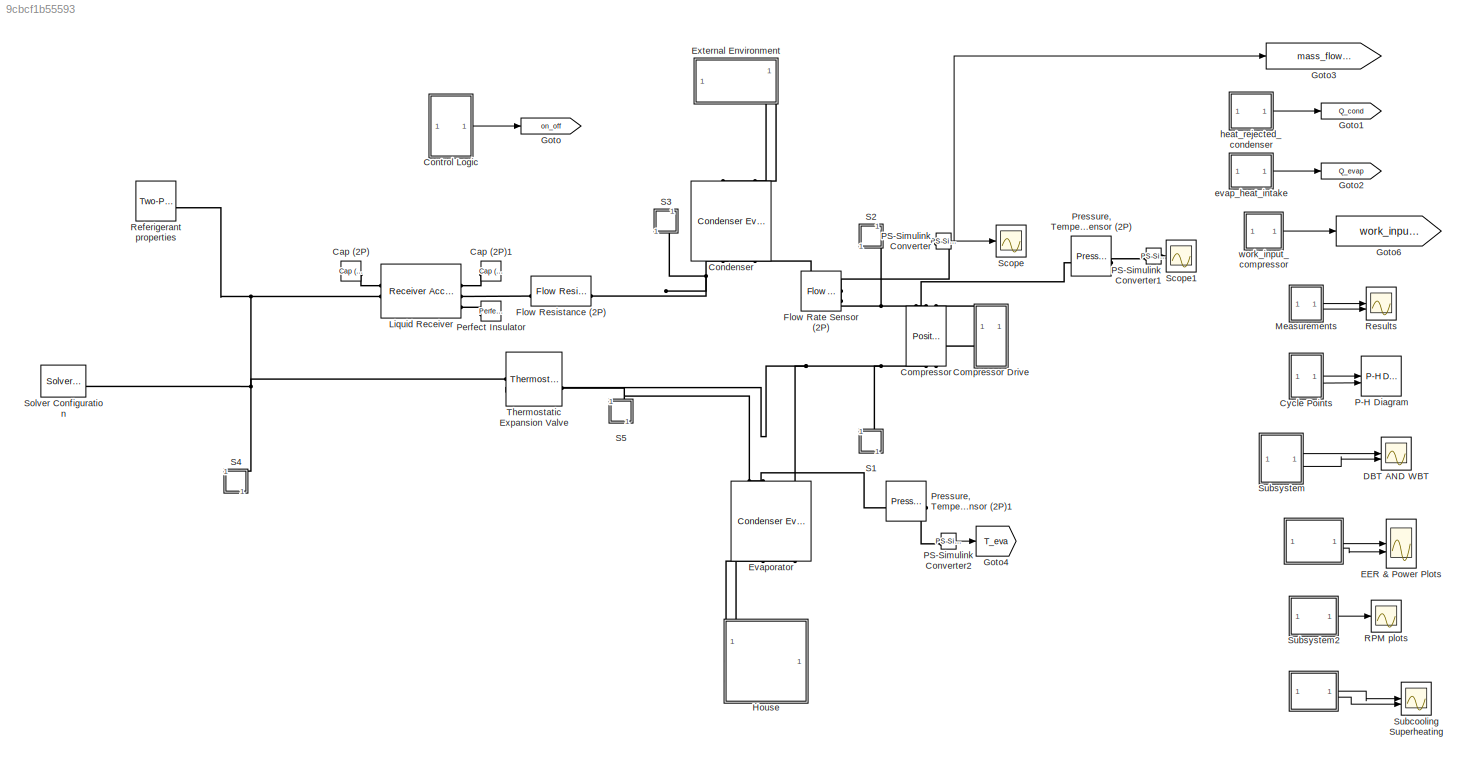
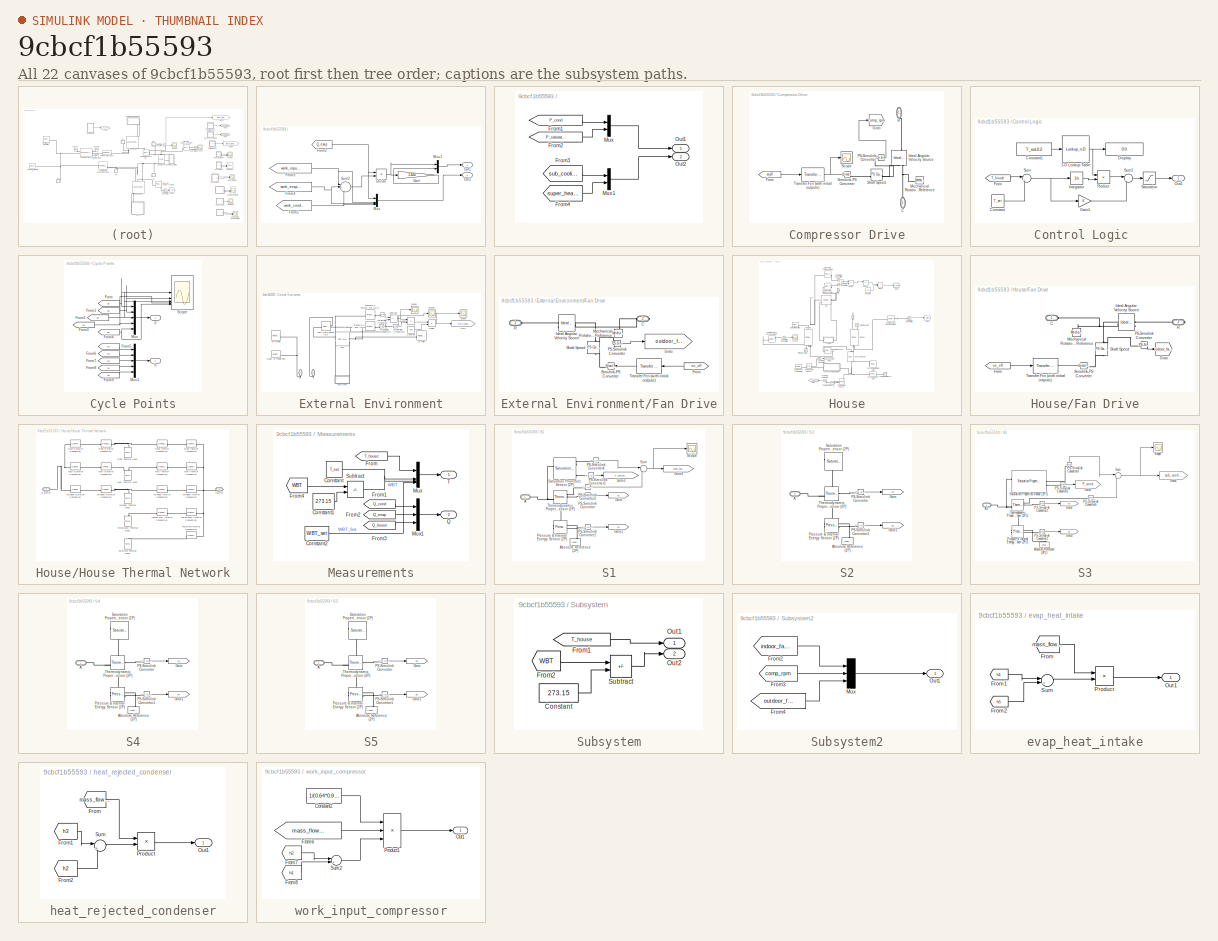
[diagram: thumbnail index - all 22 canvases of the model, root first then tree order]
MODEL slx_9cbcf1b55593
KIND model
CONFIG AbsTol = 1e-3
CONFIG EnableMultiTasking = off
CONFIG FixedStep = auto
CONFIG InitFcn = T_env = 35; % [degC] External environment temperature\np_env = 0.101325 ; %MPa\nRH_env = 0.5; % External environment relative humidity\n\nT_house_init = 35; % [degC] Initial house temperature\nRH_house_init = 0.5; % Initial house relative humidity\n\nT_set = 27; % [deg] Thermostat set point\nWBT_set=19;\n\ntube_D = 0.02; % [m] Refrigerant tube diameter\nduct_W = 0.35; % [m] Air duct width\n\nhouse_L = 4.5; % [...<+842ch>
CONFIG MaxStep = auto
CONFIG MinStep = auto
CONFIG PreLoadFcn = T_env = 35; % [degC] External environment temperature\np_env = 0.101325 ; %MPa\nRH_env = 0.5; % External environment relative humidity\n\nT_house_init = 35; % [degC] Initial house temperature\nRH_house_init = 0.5; % Initial house relative humidity\n\nT_set = 27; % [deg] Thermostat set point\nWBT_set=19;\n\ntube_D = 0.02; % [m] Refrigerant tube diameter\nduct_W = 0.35; % [m] Air duct width\n\nhouse_L = 4.5; % [...<+841ch>
CONFIG RelTol = 1e-3
CONFIG SampleTimeConstraint = Unconstrained
CONFIG SolverName = VariableStepAuto
CONFIG StartTime = 0.0
CONFIG StopTime = 2500
BLOCK [SubSystem]  
BLOCK [SubSystem]    
BLOCK [From]    /From1
  GotoTag = P_cond
  TagVisibility = global
BLOCK [From]    /From2
  GotoTag = P_saturation_evap
  TagVisibility = global
BLOCK [From]    /From3
  GotoTag = sub_cooling
  TagVisibility = global
BLOCK [From]    /From4
  GotoTag = super_heating
  TagVisibility = global
BLOCK [Mux]    /Mux
  DisplayOption = bar
  Inputs = 2
BLOCK [Mux]    /Mux1
  DisplayOption = bar
  Inputs = 2
BLOCK [Outport]    /Out1
BLOCK [Outport]    /Out2
  Port = 2
BLOCK [Product]  /Divide
  Inputs = */
BLOCK [From]  /From2
  GotoTag = Q_evap
  TagVisibility = global
BLOCK [From]  /From3
  GotoTag = work_input_comp
  TagVisibility = global
BLOCK [From]  /From4
  GotoTag = work_evap_fan
  TagVisibility = global
BLOCK [From]  /From5
  GotoTag = work_cond_fan
  TagVisibility = global
BLOCK [Gain]  /Gain
  Gain = 3.41214
BLOCK [Mux]  /Mux
  DisplayOption = bar
BLOCK [Mux]  /Mux1
  DisplayOption = bar
  Inputs = 2
BLOCK [Outport]  /Out1
BLOCK [Outport]  /Out2
  Port = 2
BLOCK [Sum]  /Sum2
  Inputs = |+|+|+
BLOCK [Reference] Cap (2P)  REF=fl_lib/Two-Phase Fluid/Elements/Cap (2P)
  SourceBlock = fl_lib/Two-Phase Fluid/Elements/Cap (2P)
  SourceType = Cap (2P)
BLOCK [Reference] Cap (2P)1  REF=fl_lib/Two-Phase Fluid/Elements/Cap (2P)
  SourceBlock = fl_lib/Two-Phase Fluid/Elements/Cap (2P)
  SourceType = Cap (2P)
BLOCK [Reference] Compressor  REF=SimscapeFluids_lib/Two-Phase Fluid/Fluid Machines/Positive-Displacement
Compressor (2P)
  NameLocation = left
  SourceBlock = SimscapeFluids_lib/Two-Phase Fluid/Fluid Machines/Positive-Displacement\nCompressor (2P)
  SourceType = Positive-Displacement\nCompressor (2P)
BLOCK [SubSystem] Compressor Drive
  NameLocation = right
  PortSchema = {"entries":[{"content":{"sides":[{"content":{"connectorIds":[]},"type":"ConnectorPlacement.EquallySpacedRectSide","uuid":"e1f7673a-ae09-4e38-a748-d03f3a89f634"},{"content":{"connectorIds":[],"side":"RIGHT"},"type":"ConnectorPlacement.EquallySpacedRectSide","uuid":"e2c59df4-5a81-4f6b-ab06-631ef800c0b1"},{"content":{"connectorIds":["LConn1"],"side":"TOP"},"type":"ConnectorPlacement.EquallySpacedRect...<+389ch>
BLOCK [PMIOPort] Compressor Drive/C
  NameLocation = right
  Port = 2
  Side = Right
BLOCK [From] Compressor Drive/From
  GotoTag = on_off
  TagVisibility = global
BLOCK [Goto] Compressor Drive/Goto
  GotoTag = comp_rpm
  TagVisibility = global
BLOCK [Reference] Compressor Drive/Ideal Angular Velocity Source  REF=fl_lib/Mechanical/Mechanical Sources/Ideal Angular
Velocity Source
  NameLocation = right
  SourceBlock = fl_lib/Mechanical/Mechanical Sources/Ideal Angular\nVelocity Source
  SourceType = Ideal Angular\nVelocity Source
BLOCK [Reference] Compressor Drive/Mechanical Rotational Reference  REF=fl_lib/Mechanical/Rotational Elements/Mechanical
Rotational Reference
  SourceBlock = fl_lib/Mechanical/Rotational Elements/Mechanical\nRotational Reference
  SourceType = Mechanical\nRotational Reference
BLOCK [Reference] Compressor Drive/PS-Simulink Converter  REF=nesl_utility/PS-Simulink
Converter
  SourceBlock = nesl_utility/PS-Simulink\nConverter
  SourceType = PS-Simulink\nConverter
BLOCK [PMIOPort] Compressor Drive/R
  NameLocation = right
  Side = Left
BLOCK [Scope] Compressor Drive/Scope
  Floating = off
  NumInputPorts = 1
  ScopeSpecificationString = Simulink.scopes.TimeScopeBlockCfg('CurrentConfiguration', extmgr.ConfigurationSet(extmgr.Configuration('Core','General UI',true),extmgr.Configuration('Core','Source UI',true),extmgr.Configuration('Sources','WiredSimulink',true,'DataLoggingVariableName','ScopeData1'),extmgr.Configuration('Visuals','Time Domain',true,'SerializedDisplays',{struct('MinYLimReal','-0.125','MaxYLimReal','1.125','YLabelRe...<+1471ch>
BLOCK [Reference] Compressor Drive/Shaft Speed  REF=fl_lib/Physical Signals/Functions/PS Gain
  SourceBlock = fl_lib/Physical Signals/Functions/PS Gain
  SourceType = PS Gain
BLOCK [Reference] Compressor Drive/Simulink-PS Converter  REF=nesl_utility/Simulink-PS
Converter
  SourceBlock = nesl_utility/Simulink-PS\nConverter
  SourceType = Simulink-PS\nConverter
BLOCK [Reference] Compressor Drive/Transfer Fcn (with initial outputs)  REF=simulink_extras/Additional
Linear/Transfer Fcn
(with initial outputs)
  SourceBlock = simulink_extras/Additional\nLinear/Transfer Fcn\n(with initial outputs)
  SourceType = Transfer Function with Initial Outputs
BLOCK [Reference] Condenser  REF=SimscapeFluids_lib/Heat Exchangers/Two-Phase Fluid -
Moist Air/Condenser Evaporator
(2P-MA)
  NameLocation = right
  SourceBlock = SimscapeFluids_lib/Heat Exchangers/Two-Phase Fluid -\nMoist Air/Condenser Evaporator\n(2P-MA)
  SourceType = Condenser Evaporator\n(2P-MA)
BLOCK [SubSystem] Control Logic 
BLOCK [Lookup_n-D] Control Logic /1-D Lookup Table
  BreakpointsForDimension1 = [17:2:29]
  InputPortMap = u0
  InternalRulePriority = Speed
  NumberOfTableDimensions = 1
  RndMeth = Simplest
  Table = [0.00004 0.00005 0.000064 0.00009 0.00014 0.00030 0.0004]
BLOCK [Constant] Control Logic /Constant
  Value = T_set
BLOCK [Constant] Control Logic /Constant1
  Value = T_set-0.2
BLOCK [Display] Control Logic /Display
  Decimation = 1
BLOCK [From] Control Logic /From
  GotoTag = T_house
  TagVisibility = global
BLOCK [Gain] Control Logic /Gain1
BLOCK [Integrator] Control Logic /Integrator
BLOCK [Outport] Control Logic /Out1
BLOCK [Product] Control Logic /Product
BLOCK [Saturate] Control Logic /Saturation
  LowerLimit = 0
  UpperLimit = 1
BLOCK [Sum] Control Logic /Sum
  Inputs = |+-
BLOCK [Sum] Control Logic /Sum1
  Inputs = |++
BLOCK [SubSystem] Cycle Points
BLOCK [From] Cycle Points/From
  GotoTag = p1
  TagVisibility = global
BLOCK [From] Cycle Points/From1
  GotoTag = p2
  TagVisibility = global
BLOCK [From] Cycle Points/From2
  GotoTag = p3
  TagVisibility = global
BLOCK [From] Cycle Points/From3
  GotoTag = p4
  TagVisibility = global
BLOCK [From] Cycle Points/From4
  GotoTag = p5
  TagVisibility = global
BLOCK [From] Cycle Points/From5
  GotoTag = h1
  TagVisibility = global
BLOCK [From] Cycle Points/From6
  GotoTag = h2
  TagVisibility = global
BLOCK [From] Cycle Points/From7
  GotoTag = h3
  TagVisibility = global
BLOCK [From] Cycle Points/From8
  GotoTag = h4
  TagVisibility = global
BLOCK [From] Cycle Points/From9
  GotoTag = h5
  TagVisibility = global
BLOCK [Mux] Cycle Points/Mux
  DisplayOption = bar
  Inputs = 5
BLOCK [Mux] Cycle Points/Mux1
  DisplayOption = bar
  Inputs = 5
BLOCK [Scope] Cycle Points/Scope
  Floating = off
  NumInputPorts = 5
  ScopeSpecificationString = Simulink.scopes.TimeScopeBlockCfg('CurrentConfiguration', extmgr.ConfigurationSet(extmgr.Configuration('Core','General UI',true),extmgr.Configuration('Core','Source UI',true),extmgr.Configuration('Sources','WiredSimulink',true,'DataLoggingVariableName','ScopeData2'),extmgr.Configuration('Visuals','Time Domain',true,'SerializedDisplays',{struct('MinYLimReal','0.13414','MaxYLimReal','1.48708','YLabe...<+1599ch>
BLOCK [Outport] Cycle Points/h
  Port = 2
BLOCK [Outport] Cycle Points/p
BLOCK [Scope] DBT AND WBT
  Floating = off
  NumInputPorts = 2
  ScopeSpecificationString = Simulink.scopes.TimeScopeBlockCfg('CurrentConfiguration', extmgr.ConfigurationSet(extmgr.Configuration('Core','General UI',true),extmgr.Configuration('Core','Source UI',true),extmgr.Configuration('Sources','WiredSimulink',true,'DataLoggingVariableName','ScopeData1'),extmgr.Configuration('Visuals','Time Domain',true,'SerializedDisplays',{struct('MinYLimReal','13.62681','MaxYLimReal','37.3748','YLab...<+1663ch>
BLOCK [Scope] EER & Power Plots
  Floating = off
  NumInputPorts = 2
  ScopeSpecificationString = Simulink.scopes.TimeScopeBlockCfg('CurrentConfiguration', extmgr.ConfigurationSet(extmgr.Configuration('Core','General UI',true),extmgr.Configuration('Core','Source UI',true),extmgr.Configuration('Sources','WiredSimulink',true,'DataLoggingVariableName','ScopeData4'),extmgr.Configuration('Visuals','Time Domain',true,'SerializedDisplays',{struct('MinYLimReal','-2.02587','MaxYLimReal','11.14522','YLa...<+2492ch>
BLOCK [Reference] Evaporator  REF=SimscapeFluids_lib/Heat Exchangers/Two-Phase Fluid -
Moist Air/Condenser Evaporator
(2P-MA)
  NameLocation = left
  SourceBlock = SimscapeFluids_lib/Heat Exchangers/Two-Phase Fluid -\nMoist Air/Condenser Evaporator\n(2P-MA)
  SourceType = Condenser Evaporator\n(2P-MA)
BLOCK [SubSystem] External Environment
  NameLocation = right
  PortSchema = {"entries":[{"content":{"sides":[{"content":{"connectorIds":[]},"type":"ConnectorPlacement.EquallySpacedRectSide","uuid":"e1f7673a-ae09-4e38-a748-d03f3a89f634"},{"content":{"connectorIds":[],"side":"RIGHT"},"type":"ConnectorPlacement.EquallySpacedRectSide","uuid":"e2c59df4-5a81-4f6b-ab06-631ef800c0b1"},{"content":{"connectorIds":[],"side":"TOP"},"type":"ConnectorPlacement.EquallySpacedRectSide","u...<+390ch>
  Tag = PublishSubsystem
BLOCK [PMIOPort] External Environment/A2
  NameLocation = right
  Port = 2
  Side = Right
BLOCK [Reference] External Environment/Air Inlet  REF=fl_lib/Moist Air/Elements/Reservoir (MA)
  SourceBlock = fl_lib/Moist Air/Elements/Reservoir (MA)
  SourceType = Reservoir (MA)
BLOCK [Reference] External Environment/Air Outlet  REF=fl_lib/Moist Air/Elements/Reservoir (MA)
  SourceBlock = fl_lib/Moist Air/Elements/Reservoir (MA)
  SourceType = Reservoir (MA)
BLOCK [PMIOPort] External Environment/B2
  NameLocation = right
  Side = Right
BLOCK [Constant] External Environment/Constant
  Value = 600
BLOCK [Product] External Environment/Divide
  Inputs = */
BLOCK [Reference] External Environment/Fan  REF=SimscapeFluids_lib/Moist Air/Turbomachinery/Fan (MA)
  SourceBlock = SimscapeFluids_lib/Moist Air/Turbomachinery/Fan (MA)
  SourceType = Fan (MA)
BLOCK [SubSystem] External Environment/Fan Drive
BLOCK [PMIOPort] External Environment/Fan Drive/C
  Port = 2
  Side = Right
BLOCK [From] External Environment/Fan Drive/From
  GotoTag = on_off
  TagVisibility = global
BLOCK [Goto] External Environment/Fan Drive/Goto
  GotoTag = outdoor_fan_rpm
  TagVisibility = global
BLOCK [Reference] External Environment/Fan Drive/Ideal Angular Velocity Source  REF=fl_lib/Mechanical/Mechanical Sources/Ideal Angular
Velocity Source
  SourceBlock = fl_lib/Mechanical/Mechanical Sources/Ideal Angular\nVelocity Source
  SourceType = Ideal Angular\nVelocity Source
BLOCK [Reference] External Environment/Fan Drive/Mechanical Rotational Reference  REF=fl_lib/Mechanical/Rotational Elements/Mechanical
Rotational Reference
  NameLocation = right
  SourceBlock = fl_lib/Mechanical/Rotational Elements/Mechanical\nRotational Reference
  SourceType = Mechanical\nRotational Reference
BLOCK [Reference] External Environment/Fan Drive/PS-Simulink Converter  REF=nesl_utility/PS-Simulink
Converter
  SourceBlock = nesl_utility/PS-Simulink\nConverter
  SourceType = PS-Simulink\nConverter
BLOCK [PMIOPort] External Environment/Fan Drive/R
  Side = Left
BLOCK [Reference] External Environment/Fan Drive/Shaft Speed  REF=fl_lib/Physical Signals/Functions/PS Gain
  NameLocation = left
  SourceBlock = fl_lib/Physical Signals/Functions/PS Gain
  SourceType = PS Gain
BLOCK [Reference] External Environment/Fan Drive/Simulink-PS Converter  REF=nesl_utility/Simulink-PS
Converter
  SourceBlock = nesl_utility/Simulink-PS\nConverter
  SourceType = Simulink-PS\nConverter
BLOCK [Reference] External Environment/Fan Drive/Transfer Fcn (with initial outputs)  REF=simulink_extras/Additional
Linear/Transfer Fcn
(with initial outputs)
  SourceBlock = simulink_extras/Additional\nLinear/Transfer Fcn\n(with initial outputs)
  SourceType = Transfer Function with Initial Outputs
BLOCK [Reference] External Environment/Flow Rate Sensor (MA)  REF=fl_lib/Moist Air/Sensors/Flow Rate Sensor
(MA)
  SourceBlock = fl_lib/Moist Air/Sensors/Flow Rate Sensor\n(MA)
  SourceType = Flow Rate Sensor\n(MA)
BLOCK [Goto] External Environment/Goto
  GotoTag = work_cond_fan
  TagVisibility = global
BLOCK [Reference] External Environment/Moist Air Properties  REF=fl_lib/Moist Air/Utilities/Moist Air Properties
(MA)
  SourceBlock = fl_lib/Moist Air/Utilities/Moist Air Properties\n(MA)
  SourceType = Moist Air Properties\n(MA)
BLOCK [Reference] External Environment/PS-Simulink Converter  REF=nesl_utility/PS-Simulink
Converter
  SourceBlock = nesl_utility/PS-Simulink\nConverter
  SourceType = PS-Simulink\nConverter
BLOCK [Reference] External Environment/PS-Simulink Converter1  REF=nesl_utility/PS-Simulink
Converter
  SourceBlock = nesl_utility/PS-Simulink\nConverter
  SourceType = PS-Simulink\nConverter
BLOCK [Reference] External Environment/PS-Simulink Converter2  REF=nesl_utility/PS-Simulink
Converter
  SourceBlock = nesl_utility/PS-Simulink\nConverter
  SourceType = PS-Simulink\nConverter
BLOCK [Reference] External Environment/Pressure & Temperature Sensor (MA)  REF=fl_lib/Moist Air/Sensors/Pressure &
Temperature Sensor
(MA)
  SourceBlock = fl_lib/Moist Air/Sensors/Pressure &\nTemperature Sensor\n(MA)
  SourceType = Pressure &\nTemperature Sensor\n(MA)
BLOCK [Reference] External Environment/Pressure & Temperature Sensor (MA)1  REF=fl_lib/Moist Air/Sensors/Pressure &
Temperature Sensor
(MA)
  SourceBlock = fl_lib/Moist Air/Sensors/Pressure &\nTemperature Sensor\n(MA)
  SourceType = Pressure &\nTemperature Sensor\n(MA)
BLOCK [Product] External Environment/Product
BLOCK [Scope] External Environment/Scope
  Floating = off
  NumInputPorts = 1
  ScopeSpecificationString = Simulink.scopes.TimeScopeBlockCfg('CurrentConfiguration', extmgr.ConfigurationSet(extmgr.Configuration('Core','General UI',true),extmgr.Configuration('Core','Source UI',true),extmgr.Configuration('Sources','WiredSimulink',true,'DataLoggingVariableName','ScopeData5'),extmgr.Configuration('Visuals','Time Domain',true,'SerializedDisplays',{struct('MinYLimReal','-0.05122','MaxYLimReal','0.63548','YLab...<+1454ch>
BLOCK [Scope] External Environment/Scope1
  Floating = off
  NumInputPorts = 1
  ScopeSpecificationString = Simulink.scopes.TimeScopeBlockCfg('CurrentConfiguration', extmgr.ConfigurationSet(extmgr.Configuration('Core','General UI',true),extmgr.Configuration('Core','Source UI',true),extmgr.Configuration('Sources','WiredSimulink',true,'DataLoggingVariableName','ScopeData6'),extmgr.Configuration('Visuals','Time Domain',true,'SerializedDisplays',{struct('MinYLimReal','-3.30858','MaxYLimReal','261.27174','YL...<+1464ch>
BLOCK [Scope] External Environment/Scope2
  Floating = off
  NumInputPorts = 1
  ScopeSpecificationString = Simulink.scopes.TimeScopeBlockCfg('CurrentConfiguration', extmgr.ConfigurationSet(extmgr.Configuration('Core','General UI',true),extmgr.Configuration('Core','Source UI',true),extmgr.Configuration('Sources','WiredSimulink',true,'DataLoggingVariableName','ScopeData7'),extmgr.Configuration('Visuals','Time Domain',true,'SerializedDisplays',{struct('MinYLimReal','0.2869','MaxYLimReal','1.93963','YLabel...<+1464ch>
BLOCK [Sum] External Environment/Subtract
  IconShape = rectangular
  Inputs = +-
BLOCK [Reference] Flow Rate Sensor (2P)  REF=fl_lib/Two-Phase Fluid/Sensors/Flow Rate Sensor
(2P)
  NameLocation = top
  SourceBlock = fl_lib/Two-Phase Fluid/Sensors/Flow Rate Sensor\n(2P)
  SourceType = Flow Rate Sensor\n(2P)
BLOCK [Reference] Flow Resistance (2P)  REF=fl_lib/Two-Phase Fluid/Elements/Flow Resistance (2P)
  SourceBlock = fl_lib/Two-Phase Fluid/Elements/Flow Resistance (2P)
  SourceType = Flow Resistance (2P)
BLOCK [Goto] Goto
  GotoTag = on_off
  TagVisibility = global
BLOCK [Goto] Goto1
  GotoTag = Q_cond
  TagVisibility = global
BLOCK [Goto] Goto2
  GotoTag = Q_evap
  NameLocation = top
  TagVisibility = global
BLOCK [Goto] Goto3
  GotoTag = mass_flow_actual
  TagVisibility = global
BLOCK [Goto] Goto4
  GotoTag = T_eva
  TagVisibility = global
BLOCK [Goto] Goto6
  GotoTag = work_input_comp
  TagVisibility = global
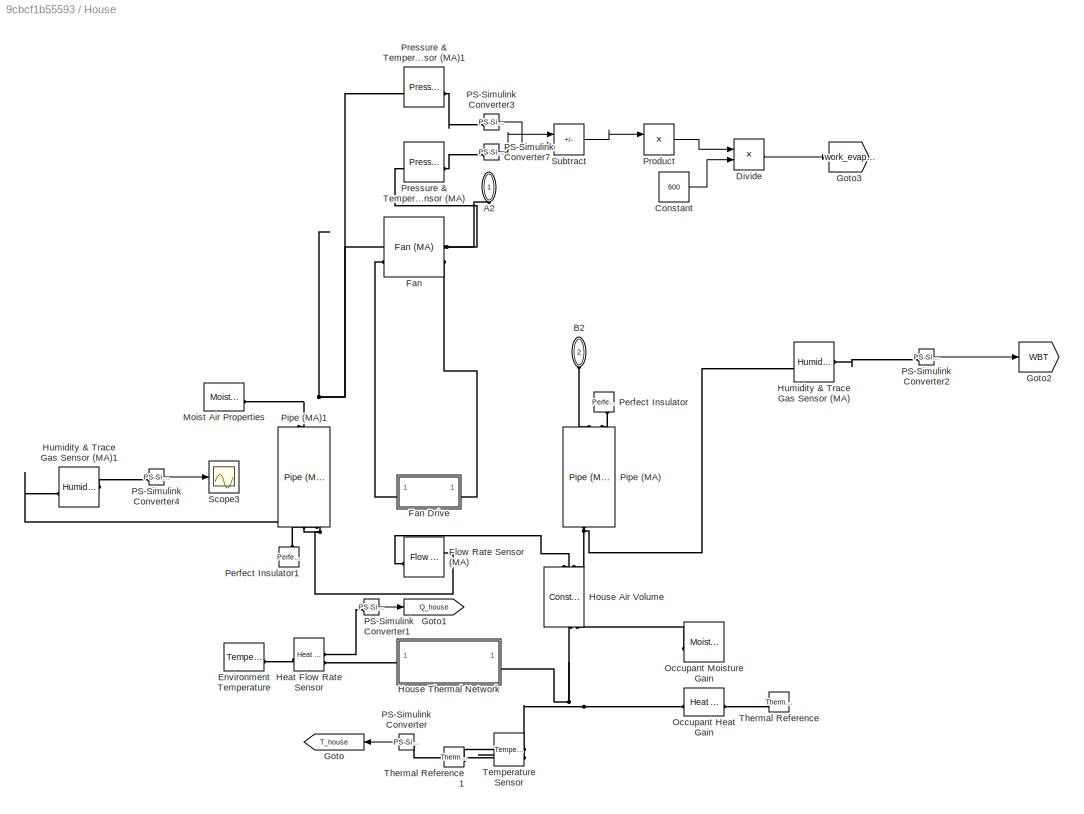
BLOCK [SubSystem] House
  NameLocation = right
  PortSchema = {"entries":[{"content":{"sides":[{"content":{"connectorIds":[]},"type":"ConnectorPlacement.EquallySpacedRectSide","uuid":"e1f7673a-ae09-4e38-a748-d03f3a89f634"},{"content":{"connectorIds":[],"side":"RIGHT"},"type":"ConnectorPlacement.EquallySpacedRectSide","uuid":"e2c59df4-5a81-4f6b-ab06-631ef800c0b1"},{"content":{"connectorIds":["LConn1","LConn2"],"side":"TOP"},"type":"ConnectorPlacement.EquallyS...<+246ch>
  Tag = PublishSubsystem
BLOCK [PMIOPort] House/A2
  NameLocation = right
  Side = Left
BLOCK [PMIOPort] House/B2
  NameLocation = right
  Port = 2
  Side = Left
BLOCK [Constant] House/Constant
  Value = 600
BLOCK [Product] House/Divide
  Inputs = */
BLOCK [Reference] House/Environment Temperature  REF=fl_lib/Thermal/Thermal Sources/Temperature Source
  SourceBlock = fl_lib/Thermal/Thermal Sources/Temperature Source
  SourceType = Temperature Source
BLOCK [Reference] House/Fan  REF=SimscapeFluids_lib/Moist Air/Turbomachinery/Fan (MA)
  SourceBlock = SimscapeFluids_lib/Moist Air/Turbomachinery/Fan (MA)
  SourceType = Fan (MA)
BLOCK [SubSystem] House/Fan Drive
BLOCK [PMIOPort] House/Fan Drive/C
  Side = Left
BLOCK [From] House/Fan Drive/From
  GotoTag = on_off
  TagVisibility = global
BLOCK [Goto] House/Fan Drive/Goto
  GotoTag = indoor_fan_rpm
  TagVisibility = global
BLOCK [Reference] House/Fan Drive/Ideal Angular Velocity Source  REF=fl_lib/Mechanical/Mechanical Sources/Ideal Angular
Velocity Source
  SourceBlock = fl_lib/Mechanical/Mechanical Sources/Ideal Angular\nVelocity Source
  SourceType = Ideal Angular\nVelocity Source
BLOCK [Reference] House/Fan Drive/Mechanical Rotational Reference  REF=fl_lib/Mechanical/Rotational Elements/Mechanical
Rotational Reference
  NameLocation = right
  SourceBlock = fl_lib/Mechanical/Rotational Elements/Mechanical\nRotational Reference
  SourceType = Mechanical\nRotational Reference
BLOCK [Reference] House/Fan Drive/PS-Simulink Converter  REF=nesl_utility/PS-Simulink
Converter
  SourceBlock = nesl_utility/PS-Simulink\nConverter
  SourceType = PS-Simulink\nConverter
BLOCK [PMIOPort] House/Fan Drive/R
  Port = 2
  Side = Right
BLOCK [Reference] House/Fan Drive/Shaft Speed  REF=fl_lib/Physical Signals/Functions/PS Gain
  NameLocation = right
  SourceBlock = fl_lib/Physical Signals/Functions/PS Gain
  SourceType = PS Gain
BLOCK [Reference] House/Fan Drive/Simulink-PS Converter  REF=nesl_utility/Simulink-PS
Converter
  SourceBlock = nesl_utility/Simulink-PS\nConverter
  SourceType = Simulink-PS\nConverter
BLOCK [Reference] House/Fan Drive/Transfer Fcn (with initial outputs)  REF=simulink_extras/Additional
Linear/Transfer Fcn
(with initial outputs)
  SourceBlock = simulink_extras/Additional\nLinear/Transfer Fcn\n(with initial outputs)
  SourceType = Transfer Function with Initial Outputs
BLOCK [Reference] House/Flow Rate Sensor (MA)  REF=fl_lib/Moist Air/Sensors/Flow Rate Sensor
(MA)
  SourceBlock = fl_lib/Moist Air/Sensors/Flow Rate Sensor\n(MA)
  SourceType = Flow Rate Sensor\n(MA)
BLOCK [Goto] House/Goto
  GotoTag = T_house
  TagVisibility = global
BLOCK [Goto] House/Goto1
  GotoTag = Q_house
  TagVisibility = global
BLOCK [Goto] House/Goto2
  GotoTag = WBT
  TagVisibility = global
BLOCK [Goto] House/Goto3
  GotoTag = work_evap_fan
  TagVisibility = global
BLOCK [Reference] House/Heat Flow Rate Sensor  REF=fl_lib/Thermal/Thermal Sensors/Heat Flow Rate
Sensor
  SourceBlock = fl_lib/Thermal/Thermal Sensors/Heat Flow Rate\nSensor
  SourceType = Heat Flow Rate\nSensor
BLOCK [Reference] House/House Air Volume  REF=fl_lib/Moist Air/Elements/Constant Volume
Chamber (MA)
  NameLocation = right
  SourceBlock = fl_lib/Moist Air/Elements/Constant Volume\nChamber (MA)
  SourceType = Constant Volume\nChamber (MA)
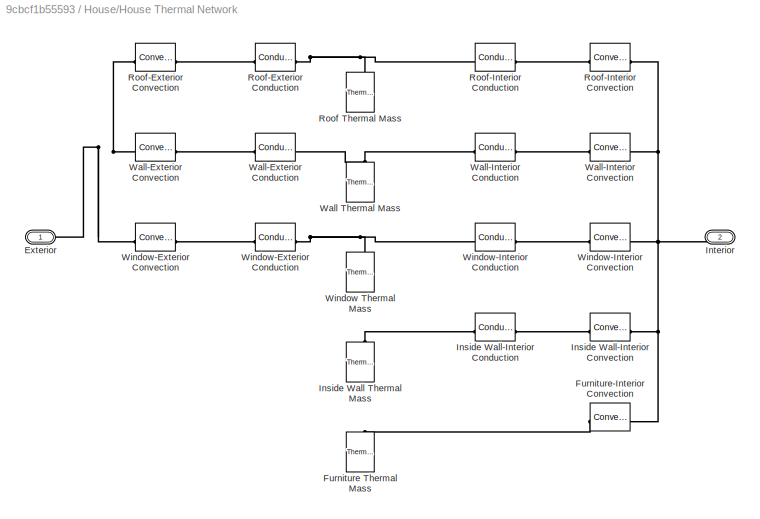
BLOCK [SubSystem] House/House Thermal Network
  Tag = PublishSubsystem
BLOCK [PMIOPort] House/House Thermal Network/Exterior
  Side = Left
BLOCK [Reference] House/House Thermal Network/Furniture Thermal Mass  REF=fl_lib/Thermal/Thermal Elements/Thermal Mass
  NameLocation = right
  SourceBlock = fl_lib/Thermal/Thermal Elements/Thermal Mass
  SourceType = Thermal Mass
BLOCK [Reference] House/House Thermal Network/Furniture-Interior Convection  REF=fl_lib/Thermal/Thermal Elements/Convective Heat
Transfer
  SourceBlock = fl_lib/Thermal/Thermal Elements/Convective Heat\nTransfer
  SourceType = Convective Heat\nTransfer
BLOCK [Reference] House/House Thermal Network/Inside Wall Thermal Mass  REF=fl_lib/Thermal/Thermal Elements/Thermal Mass
  NameLocation = right
  SourceBlock = fl_lib/Thermal/Thermal Elements/Thermal Mass
  SourceType = Thermal Mass
BLOCK [Reference] House/House Thermal Network/Inside Wall-Interior Conduction  REF=fl_lib/Thermal/Thermal Elements/Conductive Heat
Transfer
  SourceBlock = fl_lib/Thermal/Thermal Elements/Conductive Heat\nTransfer
  SourceType = Conductive Heat\nTransfer
BLOCK [Reference] House/House Thermal Network/Inside Wall-Interior Convection  REF=fl_lib/Thermal/Thermal Elements/Convective Heat
Transfer
  SourceBlock = fl_lib/Thermal/Thermal Elements/Convective Heat\nTransfer
  SourceType = Convective Heat\nTransfer
BLOCK [PMIOPort] House/House Thermal Network/Interior
  Port = 2
  Side = Right
BLOCK [Reference] House/House Thermal Network/Roof Thermal Mass  REF=fl_lib/Thermal/Thermal Elements/Thermal Mass
  NameLocation = right
  SourceBlock = fl_lib/Thermal/Thermal Elements/Thermal Mass
  SourceType = Thermal Mass
BLOCK [Reference] House/House Thermal Network/Roof-Exterior Conduction  REF=fl_lib/Thermal/Thermal Elements/Conductive Heat
Transfer
  SourceBlock = fl_lib/Thermal/Thermal Elements/Conductive Heat\nTransfer
  SourceType = Conductive Heat\nTransfer
BLOCK [Reference] House/House Thermal Network/Roof-Exterior Convection  REF=fl_lib/Thermal/Thermal Elements/Convective Heat
Transfer
  SourceBlock = fl_lib/Thermal/Thermal Elements/Convective Heat\nTransfer
  SourceType = Convective Heat\nTransfer
BLOCK [Reference] House/House Thermal Network/Roof-Interior Conduction  REF=fl_lib/Thermal/Thermal Elements/Conductive Heat
Transfer
  SourceBlock = fl_lib/Thermal/Thermal Elements/Conductive Heat\nTransfer
  SourceType = Conductive Heat\nTransfer
BLOCK [Reference] House/House Thermal Network/Roof-Interior Convection  REF=fl_lib/Thermal/Thermal Elements/Convective Heat
Transfer
  SourceBlock = fl_lib/Thermal/Thermal Elements/Convective Heat\nTransfer
  SourceType = Convective Heat\nTransfer
BLOCK [Reference] House/House Thermal Network/Wall Thermal Mass  REF=fl_lib/Thermal/Thermal Elements/Thermal Mass
  NameLocation = right
  SourceBlock = fl_lib/Thermal/Thermal Elements/Thermal Mass
  SourceType = Thermal Mass
BLOCK [Reference] House/House Thermal Network/Wall-Exterior Conduction  REF=fl_lib/Thermal/Thermal Elements/Conductive Heat
Transfer
  SourceBlock = fl_lib/Thermal/Thermal Elements/Conductive Heat\nTransfer
  SourceType = Conductive Heat\nTransfer
BLOCK [Reference] House/House Thermal Network/Wall-Exterior Convection  REF=fl_lib/Thermal/Thermal Elements/Convective Heat
Transfer
  SourceBlock = fl_lib/Thermal/Thermal Elements/Convective Heat\nTransfer
  SourceType = Convective Heat\nTransfer
BLOCK [Reference] House/House Thermal Network/Wall-Interior Conduction  REF=fl_lib/Thermal/Thermal Elements/Conductive Heat
Transfer
  SourceBlock = fl_lib/Thermal/Thermal Elements/Conductive Heat\nTransfer
  SourceType = Conductive Heat\nTransfer
BLOCK [Reference] House/House Thermal Network/Wall-Interior Convection  REF=fl_lib/Thermal/Thermal Elements/Convective Heat
Transfer
  SourceBlock = fl_lib/Thermal/Thermal Elements/Convective Heat\nTransfer
  SourceType = Convective Heat\nTransfer
BLOCK [Reference] House/House Thermal Network/Window Thermal Mass  REF=fl_lib/Thermal/Thermal Elements/Thermal Mass
  NameLocation = right
  SourceBlock = fl_lib/Thermal/Thermal Elements/Thermal Mass
  SourceType = Thermal Mass
BLOCK [Reference] House/House Thermal Network/Window-Exterior Conduction  REF=fl_lib/Thermal/Thermal Elements/Conductive Heat
Transfer
  SourceBlock = fl_lib/Thermal/Thermal Elements/Conductive Heat\nTransfer
  SourceType = Conductive Heat\nTransfer
BLOCK [Reference] House/House Thermal Network/Window-Exterior Convection  REF=fl_lib/Thermal/Thermal Elements/Convective Heat
Transfer
  SourceBlock = fl_lib/Thermal/Thermal Elements/Convective Heat\nTransfer
  SourceType = Convective Heat\nTransfer
BLOCK [Reference] House/House Thermal Network/Window-Interior Conduction  REF=fl_lib/Thermal/Thermal Elements/Conductive Heat
Transfer
  SourceBlock = fl_lib/Thermal/Thermal Elements/Conductive Heat\nTransfer
  SourceType = Conductive Heat\nTransfer
BLOCK [Reference] House/House Thermal Network/Window-Interior Convection  REF=fl_lib/Thermal/Thermal Elements/Convective Heat
Transfer
  SourceBlock = fl_lib/Thermal/Thermal Elements/Convective Heat\nTransfer
  SourceType = Convective Heat\nTransfer
BLOCK [Reference] House/Humidity & Trace Gas Sensor (MA)  REF=fl_lib/Moist Air/Sensors/Humidity & Trace Gas
Sensor (MA)
  SourceBlock = fl_lib/Moist Air/Sensors/Humidity & Trace Gas\nSensor (MA)
  SourceType = Humidity & Trace Gas\nSensor (MA)
BLOCK [Reference] House/Humidity & Trace Gas Sensor (MA)1  REF=fl_lib/Moist Air/Sensors/Humidity & Trace Gas
Sensor (MA)
  SourceBlock = fl_lib/Moist Air/Sensors/Humidity & Trace Gas\nSensor (MA)
  SourceType = Humidity & Trace Gas\nSensor (MA)
BLOCK [Reference] House/Moist Air Properties  REF=fl_lib/Moist Air/Utilities/Moist Air Properties
(MA)
  SourceBlock = fl_lib/Moist Air/Utilities/Moist Air Properties\n(MA)
  SourceType = Moist Air Properties\n(MA)
BLOCK [Reference] House/Occupant Heat Gain  REF=fl_lib/Thermal/Thermal Sources/Heat Flow Rate
Source
  SourceBlock = fl_lib/Thermal/Thermal Sources/Heat Flow Rate\nSource
  SourceType = Heat Flow Rate\nSource
BLOCK [Reference] House/Occupant Moisture Gain  REF=fl_lib/Moist Air/Sources/Moisture & Trace Gas
Sources/Moisture Source (MA)
  SourceBlock = fl_lib/Moist Air/Sources/Moisture & Trace Gas\nSources/Moisture Source (MA)
  SourceType = Moisture Source (MA)
BLOCK [Reference] House/PS-Simulink Converter  REF=nesl_utility/PS-Simulink
Converter
  SourceBlock = nesl_utility/PS-Simulink\nConverter
  SourceType = PS-Simulink\nConverter
BLOCK [Reference] House/PS-Simulink Converter1  REF=nesl_utility/PS-Simulink
Converter
  SourceBlock = nesl_utility/PS-Simulink\nConverter
  SourceType = PS-Simulink\nConverter
BLOCK [Reference] House/PS-Simulink Converter2  REF=nesl_utility/PS-Simulink
Converter
  SourceBlock = nesl_utility/PS-Simulink\nConverter
  SourceType = PS-Simulink\nConverter
BLOCK [Reference] House/PS-Simulink Converter3  REF=nesl_utility/PS-Simulink
Converter
  SourceBlock = nesl_utility/PS-Simulink\nConverter
  SourceType = PS-Simulink\nConverter
BLOCK [Reference] House/PS-Simulink Converter4  REF=nesl_utility/PS-Simulink
Converter
  SourceBlock = nesl_utility/PS-Simulink\nConverter
  SourceType = PS-Simulink\nConverter
BLOCK [Reference] House/PS-Simulink Converter7  REF=nesl_utility/PS-Simulink
Converter
  SourceBlock = nesl_utility/PS-Simulink\nConverter
  SourceType = PS-Simulink\nConverter
BLOCK [Reference] House/Perfect Insulator  REF=fl_lib/Thermal/Thermal Elements/Perfect Insulator
  NameLocation = left
  SourceBlock = fl_lib/Thermal/Thermal Elements/Perfect Insulator
  SourceType = Perfect Insulator
BLOCK [Reference] House/Perfect Insulator1  REF=fl_lib/Thermal/Thermal Elements/Perfect Insulator
  NameLocation = right
  SourceBlock = fl_lib/Thermal/Thermal Elements/Perfect Insulator
  SourceType = Perfect Insulator
BLOCK [Reference] House/Pipe (MA)  REF=fl_lib/Moist Air/Elements/Pipe (MA)
  NameLocation = left
  SourceBlock = fl_lib/Moist Air/Elements/Pipe (MA)
  SourceType = Pipe (MA)
BLOCK [Reference] House/Pipe (MA)1  REF=fl_lib/Moist Air/Elements/Pipe (MA)
  NameLocation = right
  SourceBlock = fl_lib/Moist Air/Elements/Pipe (MA)
  SourceType = Pipe (MA)
BLOCK [Reference] House/Pressure & Temperature Sensor (MA)  REF=fl_lib/Moist Air/Sensors/Pressure &
Temperature Sensor
(MA)
  SourceBlock = fl_lib/Moist Air/Sensors/Pressure &\nTemperature Sensor\n(MA)
  SourceType = Pressure &\nTemperature Sensor\n(MA)
BLOCK [Reference] House/Pressure & Temperature Sensor (MA)1  REF=fl_lib/Moist Air/Sensors/Pressure &
Temperature Sensor
(MA)
  SourceBlock = fl_lib/Moist Air/Sensors/Pressure &\nTemperature Sensor\n(MA)
  SourceType = Pressure &\nTemperature Sensor\n(MA)
BLOCK [Product] House/Product
BLOCK [Scope] House/Scope3
  Floating = off
  NumInputPorts = 1
  ScopeSpecificationString = Simulink.scopes.TimeScopeBlockCfg('CurrentConfiguration', extmgr.ConfigurationSet(extmgr.Configuration('Core','General UI',true),extmgr.Configuration('Core','Source UI',true),extmgr.Configuration('Sources','WiredSimulink',true,'DataLoggingVariableName','ScopeData3'),extmgr.Configuration('Visuals','Time Domain',true,'SerializedDisplays',{struct('MinYLimReal','295.39509','MaxYLimReal','299.73983','Y...<+1484ch>
BLOCK [Sum] House/Subtract
  IconShape = rectangular
  Inputs = +-
BLOCK [Reference] House/Temperature Sensor  REF=fl_lib/Thermal/Thermal Sensors/Temperature Sensor
  SourceBlock = fl_lib/Thermal/Thermal Sensors/Temperature Sensor
  SourceType = Temperature Sensor
BLOCK [Reference] House/Thermal Reference  REF=fl_lib/Thermal/Thermal Elements/Thermal Reference
  SourceBlock = fl_lib/Thermal/Thermal Elements/Thermal Reference
  SourceType = Thermal Reference
BLOCK [Reference] House/Thermal Reference1  REF=fl_lib/Thermal/Thermal Elements/Thermal Reference
  SourceBlock = fl_lib/Thermal/Thermal Elements/Thermal Reference
  SourceType = Thermal Reference
BLOCK [Reference] Liquid Receiver  REF=SimscapeFluids_lib/Two-Phase Fluid/Tanks & Accumulators/Receiver Accumulator
(2P)
  SourceBlock = SimscapeFluids_lib/Two-Phase Fluid/Tanks & Accumulators/Receiver Accumulator\n(2P)
  SourceType = Receiver Accumulator\n(2P)
BLOCK [SubSystem] Measurements
BLOCK [Constant] Measurements/Constant
  Value = T_set
BLOCK [Constant] Measurements/Constant1
  Value = 273.15
BLOCK [Constant] Measurements/Constant2
  Value = WBT_set
BLOCK [From] Measurements/From
  GotoTag = T_house
  TagVisibility = global
BLOCK [From] Measurements/From1
  GotoTag = Q_cond
  TagVisibility = global
BLOCK [From] Measurements/From2
  GotoTag = Q_evap
  TagVisibility = global
BLOCK [From] Measurements/From3
  GotoTag = Q_house
  TagVisibility = global
BLOCK [From] Measurements/From4
  GotoTag = WBT
  TagVisibility = global
BLOCK [Mux] Measurements/Mux
  DisplayOption = bar
BLOCK [Mux] Measurements/Mux1
  DisplayOption = bar
  Inputs = 3
BLOCK [Outport] Measurements/Q
  Port = 2
BLOCK [Sum] Measurements/Subtract
  IconShape = rectangular
  Inputs = +-
BLOCK [Outport] Measurements/T
BLOCK [Reference] P-H Diagram  REF=SimscapeFluids_lib/Two-Phase Fluid/Utilities/P-H Diagram (2P)
  SourceBlock = SimscapeFluids_lib/Two-Phase Fluid/Utilities/P-H Diagram (2P)
  SourceType = P-H Diagram (2P)
  UserDataPersistent = on
BLOCK [Reference] PS-Simulink Converter  REF=nesl_utility/PS-Simulink
Converter
  SourceBlock = nesl_utility/PS-Simulink\nConverter
  SourceType = PS-Simulink\nConverter
BLOCK [Reference] PS-Simulink Converter1  REF=nesl_utility/PS-Simulink
Converter
  SourceBlock = nesl_utility/PS-Simulink\nConverter
  SourceType = PS-Simulink\nConverter
BLOCK [Reference] PS-Simulink Converter2  REF=nesl_utility/PS-Simulink
Converter
  SourceBlock = nesl_utility/PS-Simulink\nConverter
  SourceType = PS-Simulink\nConverter
BLOCK [Reference] Perfect Insulator  REF=fl_lib/Thermal/Thermal Elements/Perfect Insulator
  SourceBlock = fl_lib/Thermal/Thermal Elements/Perfect Insulator
  SourceType = Perfect Insulator
BLOCK [Reference] Pressure, Temperature & Internal Energy Sensor (2P)  REF=fl_lib/Two-Phase Fluid/Sensors/Pressure,
Temperature &
Internal Energy
Sensor (2P)
  SourceBlock = fl_lib/Two-Phase Fluid/Sensors/Pressure,\nTemperature &\nInternal Energy\nSensor (2P)
  SourceType = Pressure,\nTemperature &\nInternal Energy\nSensor (2P)
BLOCK [Reference] Pressure, Temperature & Internal Energy Sensor (2P)1  REF=fl_lib/Two-Phase Fluid/Sensors/Pressure,
Temperature &
Internal Energy
Sensor (2P)
  SourceBlock = fl_lib/Two-Phase Fluid/Sensors/Pressure,\nTemperature &\nInternal Energy\nSensor (2P)
  SourceType = Pressure,\nTemperature &\nInternal Energy\nSensor (2P)
BLOCK [Scope] RPM plots
  Floating = off
  NumInputPorts = 1
  ScopeSpecificationString = Simulink.scopes.TimeScopeBlockCfg('CurrentConfiguration', extmgr.ConfigurationSet(extmgr.Configuration('Core','General UI',true),extmgr.Configuration('Core','Source UI',true),extmgr.Configuration('Sources','WiredSimulink',true,'DataLoggingVariableName','ScopeData3'),extmgr.Configuration('Visuals','Time Domain',true,'SerializedDisplays',{struct('MinYLimReal','116.71916','MaxYLimReal','3709.25343','...<+1655ch>
BLOCK [Reference] Referigerant properties  REF=SimscapeFluids_lib/Two-Phase Fluid/Utilities/Two-Phase Fluid
Predefined
Properties (2P)
  SourceBlock = SimscapeFluids_lib/Two-Phase Fluid/Utilities/Two-Phase Fluid\nPredefined\nProperties (2P)
  SourceType = Two-Phase Fluid\nPredefined\nProperties (2P)
BLOCK [Scope] Results
  Floating = off
  NumInputPorts = 2
  ScopeSpecificationString = Simulink.scopes.TimeScopeBlockCfg('CurrentConfiguration', extmgr.ConfigurationSet(extmgr.Configuration('Core','General UI',true),extmgr.Configuration('Core','Source UI',true),extmgr.Configuration('Sources','WiredSimulink',true),extmgr.Configuration('Visuals','Time Domain',true,'SerializedDisplays',{struct('MinYLimReal','11.51132','MaxYLimReal','35.00000','YLabelReal','House Temperature (degC)','Mi...<+2637ch>
  Tag = PublishScope
BLOCK [SubSystem] S1
  NameLocation = left
BLOCK [PMIOPort] S1/A
  Side = Left
BLOCK [Reference] S1/Absolute Reference (2P)  REF=fl_lib/Two-Phase Fluid/Elements/Absolute Reference
(2P)
  NameLocation = right
  SourceBlock = fl_lib/Two-Phase Fluid/Elements/Absolute Reference\n(2P)
  SourceType = Absolute Reference\n(2P)
BLOCK [Goto] S1/Goto
  GotoTag = h1
  TagVisibility = global
BLOCK [Goto] S1/Goto1
  GotoTag = p1
  TagVisibility = global
BLOCK [Goto] S1/Goto3
  GotoTag = P_saturation_evap
  TagVisibility = global
BLOCK [Goto] S1/Goto4
  GotoTag = super_heating
  TagVisibility = global
BLOCK [Reference] S1/PS-Simulink Converter  REF=nesl_utility/PS-Simulink
Converter
  SourceBlock = nesl_utility/PS-Simulink\nConverter
  SourceType = PS-Simulink\nConverter
BLOCK [Reference] S1/PS-Simulink Converter1  REF=nesl_utility/PS-Simulink
Converter
  SourceBlock = nesl_utility/PS-Simulink\nConverter
  SourceType = PS-Simulink\nConverter
BLOCK [Reference] S1/PS-Simulink Converter2  REF=nesl_utility/PS-Simulink
Converter
  SourceBlock = nesl_utility/PS-Simulink\nConverter
  SourceType = PS-Simulink\nConverter
BLOCK [Reference] S1/PS-Simulink Converter3  REF=nesl_utility/PS-Simulink
Converter
  SourceBlock = nesl_utility/PS-Simulink\nConverter
  SourceType = PS-Simulink\nConverter
BLOCK [Reference] S1/PS-Simulink Converter4  REF=nesl_utility/PS-Simulink
Converter
  SourceBlock = nesl_utility/PS-Simulink\nConverter
  SourceType = PS-Simulink\nConverter
BLOCK [Reference] S1/Pressure & Internal Energy Sensor (2P)  REF=fl_lib/Two-Phase Fluid/Sensors/Pressure,
Temperature &
Internal Energy
Sensor (2P)
  SourceBlock = fl_lib/Two-Phase Fluid/Sensors/Pressure,\nTemperature &\nInternal Energy\nSensor (2P)
  SourceType = Pressure,\nTemperature &\nInternal Energy\nSensor (2P)
BLOCK [Reference] S1/Saturation Properties Sensor (2P)  REF=fl_lib/Two-Phase Fluid/Sensors/Saturation
Properties Sensor
(2P)
  SourceBlock = fl_lib/Two-Phase Fluid/Sensors/Saturation\nProperties Sensor\n(2P)
  SourceType = Saturation\nProperties Sensor\n(2P)
BLOCK [Scope] S1/Scope
  Floating = off
  NumInputPorts = 1
  ScopeSpecificationString = Simulink.scopes.TimeScopeBlockCfg('CurrentConfiguration', extmgr.ConfigurationSet(extmgr.Configuration('Core','General UI',true),extmgr.Configuration('Core','Source UI',true),extmgr.Configuration('Sources','WiredSimulink',true,'DataLoggingVariableName','ScopeData3'),extmgr.Configuration('Visuals','Time Domain',true,'SerializedDisplays',{struct('MinYLimReal','7.18867','MaxYLimReal','39.85563','YLab...<+1453ch>
BLOCK [Sum] S1/Sum
  Inputs = |-+
BLOCK [Reference] S1/Thermodynamic Properties Sensor (2P)  REF=fl_lib/Two-Phase Fluid/Sensors/Thermodynamic
Properties Sensor
(2P)
  SourceBlock = fl_lib/Two-Phase Fluid/Sensors/Thermodynamic\nProperties Sensor\n(2P)
  SourceType = Thermodynamic\nProperties Sensor\n(2P)
BLOCK [SubSystem] S2
  NameLocation = right
BLOCK [PMIOPort] S2/A
  Side = Left
BLOCK [Reference] S2/Absolute Reference (2P)  REF=fl_lib/Two-Phase Fluid/Elements/Absolute Reference
(2P)
  NameLocation = right
  SourceBlock = fl_lib/Two-Phase Fluid/Elements/Absolute Reference\n(2P)
  SourceType = Absolute Reference\n(2P)
BLOCK [Goto] S2/Goto
  GotoTag = h2
  TagVisibility = global
BLOCK [Goto] S2/Goto1
  GotoTag = p2
  TagVisibility = global
BLOCK [Reference] S2/PS-Simulink Converter  REF=nesl_utility/PS-Simulink
Converter
  SourceBlock = nesl_utility/PS-Simulink\nConverter
  SourceType = PS-Simulink\nConverter
BLOCK [Reference] S2/PS-Simulink Converter1  REF=nesl_utility/PS-Simulink
Converter
  SourceBlock = nesl_utility/PS-Simulink\nConverter
  SourceType = PS-Simulink\nConverter
BLOCK [Reference] S2/Pressure & Internal Energy Sensor (2P)  REF=fl_lib/Two-Phase Fluid/Sensors/Pressure,
Temperature &
Internal Energy
Sensor (2P)
  SourceBlock = fl_lib/Two-Phase Fluid/Sensors/Pressure,\nTemperature &\nInternal Energy\nSensor (2P)
  SourceType = Pressure,\nTemperature &\nInternal Energy\nSensor (2P)
BLOCK [Reference] S2/Saturation Properties Sensor (2P)  REF=fl_lib/Two-Phase Fluid/Sensors/Saturation
Properties Sensor
(2P)
  SourceBlock = fl_lib/Two-Phase Fluid/Sensors/Saturation\nProperties Sensor\n(2P)
  SourceType = Saturation\nProperties Sensor\n(2P)
BLOCK [Reference] S2/Thermodynamic Properties Sensor (2P)  REF=fl_lib/Two-Phase Fluid/Sensors/Thermodynamic
Properties Sensor
(2P)
  SourceBlock = fl_lib/Two-Phase Fluid/Sensors/Thermodynamic\nProperties Sensor\n(2P)
  SourceType = Thermodynamic\nProperties Sensor\n(2P)
BLOCK [SubSystem] S3
  NameLocation = right
BLOCK [PMIOPort] S3/A1
  Side = Left
BLOCK [Reference] S3/Absolute Reference (2P)1  REF=fl_lib/Two-Phase Fluid/Elements/Absolute Reference
(2P)
  NameLocation = right
  SourceBlock = fl_lib/Two-Phase Fluid/Elements/Absolute Reference\n(2P)
  SourceType = Absolute Reference\n(2P)
BLOCK [Goto] S3/Goto2
  GotoTag = h3
  TagVisibility = global
BLOCK [Goto] S3/Goto3
  GotoTag = p3
  TagVisibility = global
BLOCK [Goto] S3/Goto4
  GotoTag = sub_cooling
  TagVisibility = global
BLOCK [Goto] S3/Goto5
  GotoTag = P_cond
  TagVisibility = global
BLOCK [Reference] S3/PS-Simulink Converter2  REF=nesl_utility/PS-Simulink
Converter
  SourceBlock = nesl_utility/PS-Simulink\nConverter
  SourceType = PS-Simulink\nConverter
BLOCK [Reference] S3/PS-Simulink Converter3  REF=nesl_utility/PS-Simulink
Converter
  SourceBlock = nesl_utility/PS-Simulink\nConverter
  SourceType = PS-Simulink\nConverter
BLOCK [Reference] S3/PS-Simulink Converter4  REF=nesl_utility/PS-Simulink
Converter
  NameLocation = right
  SourceBlock = nesl_utility/PS-Simulink\nConverter
  SourceType = PS-Simulink\nConverter
BLOCK [Reference] S3/PS-Simulink Converter5  REF=nesl_utility/PS-Simulink
Converter
  SourceBlock = nesl_utility/PS-Simulink\nConverter
  SourceType = PS-Simulink\nConverter
BLOCK [Reference] S3/PS-Simulink Converter6  REF=nesl_utility/PS-Simulink
Converter
  SourceBlock = nesl_utility/PS-Simulink\nConverter
  SourceType = PS-Simulink\nConverter
BLOCK [Reference] S3/Pressure & Internal Energy Sensor (2P)1  REF=fl_lib/Two-Phase Fluid/Sensors/Pressure,
Temperature &
Internal Energy
Sensor (2P)
  SourceBlock = fl_lib/Two-Phase Fluid/Sensors/Pressure,\nTemperature &\nInternal Energy\nSensor (2P)
  SourceType = Pressure,\nTemperature &\nInternal Energy\nSensor (2P)
BLOCK [Reference] S3/Saturation Properties Sensor (2P)1  REF=fl_lib/Two-Phase Fluid/Sensors/Saturation
Properties Sensor
(2P)
  SourceBlock = fl_lib/Two-Phase Fluid/Sensors/Saturation\nProperties Sensor\n(2P)
  SourceType = Saturation\nProperties Sensor\n(2P)
BLOCK [Scope] S3/Scope
  Floating = off
  NumInputPorts = 1
  ScopeSpecificationString = Simulink.scopes.TimeScopeBlockCfg('CurrentConfiguration', extmgr.ConfigurationSet(extmgr.Configuration('Core','General UI',true),extmgr.Configuration('Core','Source UI',true),extmgr.Configuration('Sources','WiredSimulink',true,'DataLoggingVariableName','ScopeData2'),extmgr.Configuration('Visuals','Time Domain',true),extmgr.Configuration('Tools','Plot Navigation',true),extmgr.Configuration('Tools',...<+40ch>
BLOCK [Sum] S3/Sum
  Inputs = |+-
BLOCK [Reference] S3/Thermodynamic Properties Sensor (2P)1  REF=fl_lib/Two-Phase Fluid/Sensors/Thermodynamic
Properties Sensor
(2P)
  SourceBlock = fl_lib/Two-Phase Fluid/Sensors/Thermodynamic\nProperties Sensor\n(2P)
  SourceType = Thermodynamic\nProperties Sensor\n(2P)
BLOCK [SubSystem] S4
  NameLocation = left
BLOCK [PMIOPort] S4/A
  Side = Left
BLOCK [Reference] S4/Absolute Reference (2P)  REF=fl_lib/Two-Phase Fluid/Elements/Absolute Reference
(2P)
  NameLocation = right
  SourceBlock = fl_lib/Two-Phase Fluid/Elements/Absolute Reference\n(2P)
  SourceType = Absolute Reference\n(2P)
BLOCK [Goto] S4/Goto
  GotoTag = h4
  TagVisibility = global
BLOCK [Goto] S4/Goto1
  GotoTag = p4
  TagVisibility = global
BLOCK [Reference] S4/PS-Simulink Converter  REF=nesl_utility/PS-Simulink
Converter
  SourceBlock = nesl_utility/PS-Simulink\nConverter
  SourceType = PS-Simulink\nConverter
BLOCK [Reference] S4/PS-Simulink Converter1  REF=nesl_utility/PS-Simulink
Converter
  SourceBlock = nesl_utility/PS-Simulink\nConverter
  SourceType = PS-Simulink\nConverter
BLOCK [Reference] S4/Pressure & Internal Energy Sensor (2P)  REF=fl_lib/Two-Phase Fluid/Sensors/Pressure,
Temperature &
Internal Energy
Sensor (2P)
  SourceBlock = fl_lib/Two-Phase Fluid/Sensors/Pressure,\nTemperature &\nInternal Energy\nSensor (2P)
  SourceType = Pressure,\nTemperature &\nInternal Energy\nSensor (2P)
BLOCK [Reference] S4/Saturation Properties Sensor (2P)  REF=fl_lib/Two-Phase Fluid/Sensors/Saturation
Properties Sensor
(2P)
  SourceBlock = fl_lib/Two-Phase Fluid/Sensors/Saturation\nProperties Sensor\n(2P)
  SourceType = Saturation\nProperties Sensor\n(2P)
BLOCK [Reference] S4/Thermodynamic Properties Sensor (2P)  REF=fl_lib/Two-Phase Fluid/Sensors/Thermodynamic
Properties Sensor
(2P)
  SourceBlock = fl_lib/Two-Phase Fluid/Sensors/Thermodynamic\nProperties Sensor\n(2P)
  SourceType = Thermodynamic\nProperties Sensor\n(2P)
BLOCK [SubSystem] S5
  NameLocation = left
BLOCK [PMIOPort] S5/A
  Side = Left
BLOCK [Reference] S5/Absolute Reference (2P)  REF=fl_lib/Two-Phase Fluid/Elements/Absolute Reference
(2P)
  NameLocation = right
  SourceBlock = fl_lib/Two-Phase Fluid/Elements/Absolute Reference\n(2P)
  SourceType = Absolute Reference\n(2P)
BLOCK [Goto] S5/Goto
  GotoTag = h5
  TagVisibility = global
BLOCK [Goto] S5/Goto1
  GotoTag = p5
  TagVisibility = global
BLOCK [Reference] S5/PS-Simulink Converter  REF=nesl_utility/PS-Simulink
Converter
  SourceBlock = nesl_utility/PS-Simulink\nConverter
  SourceType = PS-Simulink\nConverter
BLOCK [Reference] S5/PS-Simulink Converter1  REF=nesl_utility/PS-Simulink
Converter
  SourceBlock = nesl_utility/PS-Simulink\nConverter
  SourceType = PS-Simulink\nConverter
BLOCK [Reference] S5/Pressure & Internal Energy Sensor (2P)  REF=fl_lib/Two-Phase Fluid/Sensors/Pressure,
Temperature &
Internal Energy
Sensor (2P)
  SourceBlock = fl_lib/Two-Phase Fluid/Sensors/Pressure,\nTemperature &\nInternal Energy\nSensor (2P)
  SourceType = Pressure,\nTemperature &\nInternal Energy\nSensor (2P)
BLOCK [Reference] S5/Saturation Properties Sensor (2P)  REF=fl_lib/Two-Phase Fluid/Sensors/Saturation
Properties Sensor
(2P)
  SourceBlock = fl_lib/Two-Phase Fluid/Sensors/Saturation\nProperties Sensor\n(2P)
  SourceType = Saturation\nProperties Sensor\n(2P)
BLOCK [Reference] S5/Thermodynamic Properties Sensor (2P)  REF=fl_lib/Two-Phase Fluid/Sensors/Thermodynamic
Properties Sensor
(2P)
  SourceBlock = fl_lib/Two-Phase Fluid/Sensors/Thermodynamic\nProperties Sensor\n(2P)
  SourceType = Thermodynamic\nProperties Sensor\n(2P)
BLOCK [Scope] Scope
  Floating = off
  NumInputPorts = 1
  ScopeSpecificationString = Simulink.scopes.TimeScopeBlockCfg('CurrentConfiguration', extmgr.ConfigurationSet(extmgr.Configuration('Core','General UI',true),extmgr.Configuration('Core','Source UI',true),extmgr.Configuration('Sources','WiredSimulink',true,'DataLoggingVariableName','ScopeData3'),extmgr.Configuration('Visuals','Time Domain',true,'SerializedDisplays',{struct('MinYLimReal','0.01522','MaxYLimReal','0.05574','YLabe...<+1467ch>
BLOCK [Scope] Scope1
  Floating = off
  NumInputPorts = 1
  ScopeSpecificationString = Simulink.scopes.TimeScopeBlockCfg('CurrentConfiguration', extmgr.ConfigurationSet(extmgr.Configuration('Core','General UI',true),extmgr.Configuration('Core','Source UI',true),extmgr.Configuration('Sources','WiredSimulink',true,'DataLoggingVariableName','ScopeData1'),extmgr.Configuration('Visuals','Time Domain',true,'SerializedDisplays',{struct('MinYLimReal','0.71681','MaxYLimReal','1.38099','YLabe...<+1468ch>
BLOCK [Reference] Solver Configuration  REF=nesl_utility/Solver
Configuration
  SourceBlock = nesl_utility/Solver\nConfiguration
  SourceType = Solver\nConfiguration
BLOCK [Scope] Subcooling Superheating
  Floating = off
  NumInputPorts = 2
  ScopeSpecificationString = Simulink.scopes.TimeScopeBlockCfg('CurrentConfiguration', extmgr.ConfigurationSet(extmgr.Configuration('Core','General UI',true),extmgr.Configuration('Core','Source UI',true),extmgr.Configuration('Sources','WiredSimulink',true,'DataLoggingVariableName','ScopeData1'),extmgr.Configuration('Visuals','Time Domain',true,'SerializedDisplays',{struct('MinYLimReal','0.40644','MaxYLimReal','1.40151','YLabe...<+2355ch>
BLOCK [SubSystem] Subsystem
BLOCK [Constant] Subsystem/Constant
  Value = 273.15
BLOCK [From] Subsystem/From1
  GotoTag = T_house
  TagVisibility = global
BLOCK [From] Subsystem/From2
  GotoTag = WBT
  TagVisibility = global
BLOCK [Outport] Subsystem/Out1
BLOCK [Outport] Subsystem/Out2
  Port = 2
BLOCK [Sum] Subsystem/Subtract
  IconShape = rectangular
  Inputs = +-
BLOCK [SubSystem] Subsystem2
BLOCK [From] Subsystem2/From2
  GotoTag = indoor_fan_rpm
  TagVisibility = global
BLOCK [From] Subsystem2/From3
  GotoTag = comp_rpm
  TagVisibility = global
BLOCK [From] Subsystem2/From4
  GotoTag = outdoor_fan_rpm
  TagVisibility = global
BLOCK [Mux] Subsystem2/Mux
  DisplayOption = bar
  Inputs = 3
BLOCK [Outport] Subsystem2/Out1
BLOCK [Reference] Thermostatic Expansion Valve  REF=SimscapeFluids_lib/Two-Phase Fluid/Valves & Orifices/Flow Control Valves/Thermostatic
Expansion Valve (2P)
  SourceBlock = SimscapeFluids_lib/Two-Phase Fluid/Valves & Orifices/Flow Control Valves/Thermostatic\nExpansion Valve (2P)
  SourceType = Thermostatic\nExpansion Valve (2P)
BLOCK [SubSystem] evap_heat_intake
BLOCK [From] evap_heat_intake/From
  GotoTag = mass_flow_actual
  TagVisibility = global
BLOCK [From] evap_heat_intake/From1
  GotoTag = h1
  TagVisibility = global
BLOCK [From] evap_heat_intake/From2
  GotoTag = h5
  TagVisibility = global
BLOCK [Outport] evap_heat_intake/Out1
BLOCK [Product] evap_heat_intake/Product
BLOCK [Sum] evap_heat_intake/Sum
  Inputs = |+-
BLOCK [SubSystem] heat_rejected_condenser
BLOCK [From] heat_rejected_condenser/From
  GotoTag = mass_flow_actual
  TagVisibility = global
BLOCK [From] heat_rejected_condenser/From1
  GotoTag = h3
  TagVisibility = global
BLOCK [From] heat_rejected_condenser/From2
  GotoTag = h2
  TagVisibility = global
BLOCK [Outport] heat_rejected_condenser/Out1
BLOCK [Product] heat_rejected_condenser/Product
BLOCK [Sum] heat_rejected_condenser/Sum
  Inputs = |+-
BLOCK [SubSystem] work_input_compressor
BLOCK [Constant] work_input_compressor/Constant2
  Value = 1/(0.64*0.92)
BLOCK [From] work_input_compressor/From6
  GotoTag = mass_flow_actual
  TagVisibility = global
BLOCK [From] work_input_compressor/From7
  GotoTag = h2
  TagVisibility = global
BLOCK [From] work_input_compressor/From8
  GotoTag = h1
  TagVisibility = global
BLOCK [Outport] work_input_compressor/Out1
BLOCK [Product] work_input_compressor/Product1
  Inputs = 3
BLOCK [Sum] work_input_compressor/Sum2
  Inputs = |+-
LINE    /From1:1 ->    /Mux:1
LINE    /From2:1 ->    /Mux:2
LINE    /From3:1 ->    /Mux1:1
LINE    /From4:1 ->    /Mux1:2
LINE    /Mux1:1 ->    /Out2:1
LINE    /Mux:1 ->    /Out1:1
LINE    :1 -> Subcooling Superheating:1
LINE    :2 -> Subcooling Superheating:2
NET  /Divide:1 ->  /Gain:1,  /Mux1:1
NET  /From2:1 ->  /Divide:1,  /Mux:1
NET  /From3:1 ->  /Mux:2,  /Sum2:1
NET  /From4:1 ->  /Mux:3,  /Sum2:2
NET  /From5:1 ->  /Mux:4,  /Sum2:3
LINE  /Gain:1 ->  /Mux1:2
LINE  /Mux1:1 ->  /Out1:1
LINE  /Mux:1 ->  /Out2:1
LINE  /Sum2:1 ->  /Divide:2
LINE  :1 -> EER & Power Plots:1
LINE  :2 -> EER & Power Plots:2
LINE Compressor Drive/From:1 -> Compressor Drive/Transfer Fcn (with initial outputs):1
LINE Compressor Drive/PS-Simulink Converter:1 -> Compressor Drive/Goto:1
NET Compressor Drive/Transfer Fcn (with initial outputs):1 -> Compressor Drive/Scope:1, Compressor Drive/Simulink-PS Converter:1
NET Control Logic /1-D Lookup Table:1 -> Control Logic /Display:1, Control Logic /Product:1
LINE Control Logic /Constant1:1 -> Control Logic /1-D Lookup Table:1
LINE Control Logic /Constant:1 -> Control Logic /Sum:2
LINE Control Logic /From:1 -> Control Logic /Sum:1
LINE Control Logic /Gain1:1 -> Control Logic /Sum1:2
LINE Control Logic /Integrator:1 -> Control Logic /Product:2
LINE Control Logic /Product:1 -> Control Logic /Sum1:1
LINE Control Logic /Saturation:1 -> Control Logic /Out1:1
LINE Control Logic /Sum1:1 -> Control Logic /Saturation:1
NET Control Logic /Sum:1 -> Control Logic /Gain1:1, Control Logic /Integrator:1
LINE Control Logic :1 -> Goto:1
NET Cycle Points/From1:1 -> Cycle Points/Mux:2, Cycle Points/Scope:2
NET Cycle Points/From2:1 -> Cycle Points/Mux:3, Cycle Points/Scope:3
NET Cycle Points/From3:1 -> Cycle Points/Mux:4, Cycle Points/Scope:4
NET Cycle Points/From4:1 -> Cycle Points/Mux:5, Cycle Points/Scope:5
LINE Cycle Points/From5:1 -> Cycle Points/Mux1:1
LINE Cycle Points/From6:1 -> Cycle Points/Mux1:2
LINE Cycle Points/From7:1 -> Cycle Points/Mux1:3
LINE Cycle Points/From8:1 -> Cycle Points/Mux1:4
LINE Cycle Points/From9:1 -> Cycle Points/Mux1:5
NET Cycle Points/From:1 -> Cycle Points/Mux:1, Cycle Points/Scope:1
LINE Cycle Points/Mux1:1 -> Cycle Points/h:1
LINE Cycle Points/Mux:1 -> Cycle Points/p:1
LINE Cycle Points:1 -> P-H Diagram:1
LINE Cycle Points:2 -> P-H Diagram:2
LINE External Environment/Constant:1 -> External Environment/Divide:2
NET External Environment/Divide:1 -> External Environment/Goto:1, External Environment/Scope:1
LINE External Environment/Fan Drive/From:1 -> External Environment/Fan Drive/Transfer Fcn (with initial outputs):1
LINE External Environment/Fan Drive/PS-Simulink Converter:1 -> External Environment/Fan Drive/Goto:1
LINE External Environment/Fan Drive/Transfer Fcn (with initial outputs):1 -> External Environment/Fan Drive/Simulink-PS Converter:1
LINE External Environment/PS-Simulink Converter1:1 -> External Environment/Subtract:2
NET External Environment/PS-Simulink Converter2:1 -> External Environment/Product:2, External Environment/Scope2:1
LINE External Environment/PS-Simulink Converter:1 -> External Environment/Subtract:1
LINE External Environment/Product:1 -> External Environment/Divide:1
NET External Environment/Subtract:1 -> External Environment/Product:1, External Environment/Scope1:1
LINE House/Constant:1 -> House/Divide:2
LINE House/Divide:1 -> House/Goto3:1
LINE House/Fan Drive/From:1 -> House/Fan Drive/Transfer Fcn (with initial outputs):1
LINE House/Fan Drive/PS-Simulink Converter:1 -> House/Fan Drive/Goto:1
LINE House/Fan Drive/Transfer Fcn (with initial outputs):1 -> House/Fan Drive/Simulink-PS Converter:1
LINE House/PS-Simulink Converter1:1 -> House/Goto1:1
LINE House/PS-Simulink Converter2:1 -> House/Goto2:1
LINE House/PS-Simulink Converter3:1 -> House/Subtract:2
LINE House/PS-Simulink Converter4:1 -> House/Scope3:1
LINE House/PS-Simulink Converter7:1 -> House/Subtract:1
LINE House/PS-Simulink Converter:1 -> House/Goto:1
LINE House/Product:1 -> House/Divide:1
LINE House/Subtract:1 -> House/Product:1
LINE Measurements/Constant1:1 -> Measurements/Subtract:2
LINE Measurements/Constant2:1 -> Measurements/Mux:4
LINE Measurements/Constant:1 -> Measurements/Mux:2
LINE Measurements/From1:1 -> Measurements/Mux1:1
LINE Measurements/From2:1 -> Measurements/Mux1:2
LINE Measurements/From3:1 -> Measurements/Mux1:3
LINE Measurements/From4:1 -> Measurements/Subtract:1
LINE Measurements/From:1 -> Measurements/Mux:1
LINE Measurements/Mux1:1 -> Measurements/Q:1
LINE Measurements/Mux:1 -> Measurements/T:1
LINE Measurements/Subtract:1 -> Measurements/Mux:3
LINE Measurements:1 -> Results:1
LINE Measurements:2 -> Results:2
LINE PS-Simulink Converter1:1 -> Scope1:1
LINE PS-Simulink Converter2:1 -> Goto4:1
NET PS-Simulink Converter:1 -> Goto3:1, Scope:1
LINE S1/PS-Simulink Converter1:1 -> S1/Goto1:1
LINE S1/PS-Simulink Converter2:1 -> S1/Sum:2
LINE S1/PS-Simulink Converter3:1 -> S1/Goto3:1
LINE S1/PS-Simulink Converter4:1 -> S1/Sum:1
LINE S1/PS-Simulink Converter:1 -> S1/Goto:1
NET S1/Sum:1 -> S1/Goto4:1, S1/Scope:1
LINE S2/PS-Simulink Converter1:1 -> S2/Goto1:1
LINE S2/PS-Simulink Converter:1 -> S2/Goto:1
LINE S3/PS-Simulink Converter2:1 -> S3/Goto2:1
LINE S3/PS-Simulink Converter3:1 -> S3/Goto3:1
LINE S3/PS-Simulink Converter4:1 -> S3/Sum:1
LINE S3/PS-Simulink Converter5:1 -> S3/Goto5:1
LINE S3/PS-Simulink Converter6:1 -> S3/Sum:2
NET S3/Sum:1 -> S3/Goto4:1, S3/Scope:1
LINE S4/PS-Simulink Converter1:1 -> S4/Goto1:1
LINE S4/PS-Simulink Converter:1 -> S4/Goto:1
LINE S5/PS-Simulink Converter1:1 -> S5/Goto1:1
LINE S5/PS-Simulink Converter:1 -> S5/Goto:1
LINE Subsystem/Constant:1 -> Subsystem/Subtract:2
LINE Subsystem/From1:1 -> Subsystem/Out1:1
LINE Subsystem/From2:1 -> Subsystem/Subtract:1
LINE Subsystem/Subtract:1 -> Subsystem/Out2:1
LINE Subsystem2/From2:1 -> Subsystem2/Mux:1
LINE Subsystem2/From3:1 -> Subsystem2/Mux:2
LINE Subsystem2/From4:1 -> Subsystem2/Mux:3
LINE Subsystem2/Mux:1 -> Subsystem2/Out1:1
LINE Subsystem2:1 -> RPM plots:1
LINE Subsystem:1 -> DBT AND WBT:1
LINE Subsystem:2 -> DBT AND WBT:2
LINE evap_heat_intake/From1:1 -> evap_heat_intake/Sum:1
LINE evap_heat_intake/From2:1 -> evap_heat_intake/Sum:2
LINE evap_heat_intake/From:1 -> evap_heat_intake/Product:1
LINE evap_heat_intake/Product:1 -> evap_heat_intake/Out1:1
LINE evap_heat_intake/Sum:1 -> evap_heat_intake/Product:2
LINE evap_heat_intake:1 -> Goto2:1
LINE heat_rejected_condenser/From1:1 -> heat_rejected_condenser/Sum:1
LINE heat_rejected_condenser/From2:1 -> heat_rejected_condenser/Sum:2
LINE heat_rejected_condenser/From:1 -> heat_rejected_condenser/Product:1
LINE heat_rejected_condenser/Product:1 -> heat_rejected_condenser/Out1:1
LINE heat_rejected_condenser/Sum:1 -> heat_rejected_condenser/Product:2
LINE heat_rejected_condenser:1 -> Goto1:1
LINE work_input_compressor/Constant2:1 -> work_input_compressor/Product1:1
LINE work_input_compressor/From6:1 -> work_input_compressor/Product1:2
LINE work_input_compressor/From7:1 -> work_input_compressor/Sum2:1
LINE work_input_compressor/From8:1 -> work_input_compressor/Sum2:2
LINE work_input_compressor/Product1:1 -> work_input_compressor/Out1:1
LINE work_input_compressor/Sum2:1 -> work_input_compressor/Product1:3
LINE work_input_compressor:1 -> Goto6:1
PLINE Cap (2P)1:LConn1 -- Liquid Receiver:LConn1
PLINE Cap (2P):LConn1 -- Liquid Receiver:RConn1
PNET net1: Compressor Drive/C:RConn1 -- Compressor Drive/Ideal Angular Velocity Source:RConn2 -- Compressor Drive/Mechanical Rotational Reference:LConn1
PLINE Compressor Drive/Ideal Angular Velocity Source:LConn1 -- Compressor Drive/R:RConn1
PNET net2: Compressor Drive/Ideal Angular Velocity Source:RConn1 -- Compressor Drive/PS-Simulink Converter:LConn1 -- Compressor Drive/Shaft Speed:RConn1
PLINE Compressor Drive/Shaft Speed:LConn1 -- Compressor Drive/Simulink-PS Converter:RConn1
PLINE Compressor Drive:LConn1 -- Compressor:RConn2
PLINE Compressor Drive:RConn1 -- Compressor:LConn2
PNET net3: Compressor:LConn1 -- Evaporator:LConn3 -- S1:LConn1 -- Thermostatic Expansion Valve:LConn2
PNET net4: Compressor:RConn1 -- Flow Rate Sensor (2P):LConn1 -- Pressure, Temperature & Internal Energy Sensor (2P):LConn1 -- S2:LConn1
PLINE Condenser:LConn1 -- Flow Rate Sensor (2P):RConn1
PNET net5: Condenser:LConn3 -- Flow Resistance (2P):LConn1 -- S3:LConn1
PLINE Condenser:RConn1 -- External Environment:RConn2
PLINE Condenser:RConn3 -- External Environment:RConn1
PNET net6: Evaporator:LConn1 -- Pressure, Temperature & Internal Energy Sensor (2P)1:LConn1 -- S5:LConn1 -- Thermostatic Expansion Valve:RConn1
PLINE Evaporator:RConn1 -- House:LConn1
PLINE Evaporator:RConn3 -- House:LConn2
PLINE External Environment/A2:RConn1 -- External Environment/Flow Rate Sensor (MA):RConn1
PNET net7: External Environment/Air Inlet:LConn1 -- External Environment/Fan:LConn1 -- External Environment/Pressure & Temperature Sensor (MA):LConn1
PNET net8: External Environment/Air Outlet:LConn1 -- External Environment/B2:RConn1 -- External Environment/Moist Air Properties:RConn1
PNET net9: External Environment/Fan Drive/C:RConn1 -- External Environment/Fan Drive/Ideal Angular Velocity Source:RConn2 -- External Environment/Fan Drive/Mechanical Rotational Reference:LConn1
PLINE External Environment/Fan Drive/Ideal Angular Velocity Source:LConn1 -- External Environment/Fan Drive/R:RConn1
PNET net10: External Environment/Fan Drive/Ideal Angular Velocity Source:RConn1 -- External Environment/Fan Drive/PS-Simulink Converter:LConn1 -- External Environment/Fan Drive/Shaft Speed:RConn1
PLINE External Environment/Fan Drive/Shaft Speed:LConn1 -- External Environment/Fan Drive/Simulink-PS Converter:RConn1
PLINE External Environment/Fan Drive:LConn1 -- External Environment/Fan:RConn2
PLINE External Environment/Fan Drive:RConn1 -- External Environment/Fan:LConn2
PNET net11: External Environment/Fan:RConn1 -- External Environment/Flow Rate Sensor (MA):LConn1 -- External Environment/Pressure & Temperature Sensor (MA)1:LConn1
PLINE External Environment/Flow Rate Sensor (MA):RConn2 -- External Environment/PS-Simulink Converter2:LConn1
PLINE External Environment/PS-Simulink Converter1:LConn1 -- External Environment/Pressure & Temperature Sensor (MA):RConn1
PLINE External Environment/PS-Simulink Converter:LConn1 -- External Environment/Pressure & Temperature Sensor (MA)1:RConn1
PLINE Flow Rate Sensor (2P):RConn2 -- PS-Simulink Converter:LConn1
PLINE Flow Resistance (2P):RConn1 -- Liquid Receiver:LConn2
PNET net12: House/A2:RConn1 -- House/Fan:RConn1 -- House/Pressure & Temperature Sensor (MA):LConn1
PLINE House/B2:RConn1 -- House/Pipe (MA):LConn1
PLINE House/Environment Temperature:LConn1 -- House/Heat Flow Rate Sensor:LConn1
PNET net13: House/Fan Drive/C:RConn1 -- House/Fan Drive/Ideal Angular Velocity Source:RConn2 -- House/Fan Drive/Mechanical Rotational Reference:LConn1
PLINE House/Fan Drive/Ideal Angular Velocity Source:LConn1 -- House/Fan Drive/R:RConn1
PNET net14: House/Fan Drive/Ideal Angular Velocity Source:RConn1 -- House/Fan Drive/PS-Simulink Converter:LConn1 -- House/Fan Drive/Shaft Speed:RConn1
PLINE House/Fan Drive/Shaft Speed:LConn1 -- House/Fan Drive/Simulink-PS Converter:RConn1
PLINE House/Fan Drive:LConn1 -- House/Fan:LConn2
PLINE House/Fan Drive:RConn1 -- House/Fan:RConn2
PNET net15: House/Fan:LConn1 -- House/Moist Air Properties:RConn1 -- House/Pipe (MA)1:RConn1 -- House/Pressure & Temperature Sensor (MA)1:LConn1
PLINE House/Flow Rate Sensor (MA):LConn1 -- House/House Air Volume:LConn1
PNET net16: House/Flow Rate Sensor (MA):RConn1 -- House/Humidity & Trace Gas Sensor (MA)1:LConn1 -- House/Pipe (MA)1:LConn1
PLINE House/Heat Flow Rate Sensor:RConn1 -- House/PS-Simulink Converter1:LConn1
PLINE House/Heat Flow Rate Sensor:RConn2 -- House/House Thermal Network:LConn1
PNET net17: House/House Air Volume:LConn2 -- House/Humidity & Trace Gas Sensor (MA):LConn1 -- House/Pipe (MA):RConn1
PNET net18: House/House Air Volume:RConn3 -- House/House Thermal Network:RConn1 -- House/Occupant Heat Gain:LConn1 -- House/Temperature Sensor:LConn1
PLINE House/House Air Volume:RConn4 -- House/Occupant Moisture Gain:LConn1
PNET net19: House/House Thermal Network/Exterior:RConn1 -- House/House Thermal Network/Roof-Exterior Convection:LConn1 -- House/House Thermal Network/Wall-Exterior Convection:LConn1 -- House/House Thermal Network/Window-Exterior Convection:LConn1
PLINE House/House Thermal Network/Furniture Thermal Mass:LConn1 -- House/House Thermal Network/Furniture-Interior Convection:LConn1
PNET net20: House/House Thermal Network/Furniture-Interior Convection:RConn1 -- House/House Thermal Network/Inside Wall-Interior Convection:RConn1 -- House/House Thermal Network/Interior:RConn1 -- House/House Thermal Network/Roof-Interior Convection:RConn1 -- House/House Thermal Network/Wall-Interior Convection:RConn1 -- House/House Thermal Network/Window-Interior Convection:RConn1
PLINE House/House Thermal Network/Inside Wall Thermal Mass:LConn1 -- House/House Thermal Network/Inside Wall-Interior Conduction:LConn1
PLINE House/House Thermal Network/Inside Wall-Interior Conduction:RConn1 -- House/House Thermal Network/Inside Wall-Interior Convection:LConn1
PNET net21: House/House Thermal Network/Roof Thermal Mass:LConn1 -- House/House Thermal Network/Roof-Exterior Conduction:RConn1 -- House/House Thermal Network/Roof-Interior Conduction:LConn1
PLINE House/House Thermal Network/Roof-Exterior Conduction:LConn1 -- House/House Thermal Network/Roof-Exterior Convection:RConn1
PLINE House/House Thermal Network/Roof-Interior Conduction:RConn1 -- House/House Thermal Network/Roof-Interior Convection:LConn1
PNET net22: House/House Thermal Network/Wall Thermal Mass:LConn1 -- House/House Thermal Network/Wall-Exterior Conduction:RConn1 -- House/House Thermal Network/Wall-Interior Conduction:LConn1
PLINE House/House Thermal Network/Wall-Exterior Conduction:LConn1 -- House/House Thermal Network/Wall-Exterior Convection:RConn1
PLINE House/House Thermal Network/Wall-Interior Conduction:RConn1 -- House/House Thermal Network/Wall-Interior Convection:LConn1
PNET net23: House/House Thermal Network/Window Thermal Mass:LConn1 -- House/House Thermal Network/Window-Exterior Conduction:RConn1 -- House/House Thermal Network/Window-Interior Conduction:LConn1
PLINE House/House Thermal Network/Window-Exterior Conduction:LConn1 -- House/House Thermal Network/Window-Exterior Convection:RConn1
PLINE House/House Thermal Network/Window-Interior Conduction:RConn1 -- House/House Thermal Network/Window-Interior Convection:LConn1
PLINE House/Humidity & Trace Gas Sensor (MA)1:RConn1 -- House/PS-Simulink Converter4:LConn1
PLINE House/Humidity & Trace Gas Sensor (MA):RConn1 -- House/PS-Simulink Converter2:LConn1
PLINE House/Occupant Heat Gain:RConn1 -- House/Thermal Reference:LConn1
PLINE House/PS-Simulink Converter3:LConn1 -- House/Pressure & Temperature Sensor (MA)1:RConn1
PLINE House/PS-Simulink Converter7:LConn1 -- House/Pressure & Temperature Sensor (MA):RConn1
PLINE House/PS-Simulink Converter:LConn1 -- House/Temperature Sensor:RConn2
PLINE House/Perfect Insulator1:LConn1 -- House/Pipe (MA)1:LConn2
PLINE House/Perfect Insulator:LConn1 -- House/Pipe (MA):LConn2
PLINE House/Temperature Sensor:RConn1 -- House/Thermal Reference1:LConn1
PLINE Liquid Receiver:LConn3 -- Perfect Insulator:LConn1
PNET net24: Liquid Receiver:RConn2 -- Referigerant properties:RConn1 -- S4:LConn1 -- Solver Configuration:RConn1 -- Thermostatic Expansion Valve:LConn1
PLINE PS-Simulink Converter1:LConn1 -- Pressure, Temperature & Internal Energy Sensor (2P):RConn1
PLINE PS-Simulink Converter2:LConn1 -- Pressure, Temperature & Internal Energy Sensor (2P)1:RConn1
PNET net25: S1/A:RConn1 -- S1/Pressure & Internal Energy Sensor (2P):LConn1 -- S1/Saturation Properties Sensor (2P):LConn1 -- S1/Thermodynamic Properties Sensor (2P):LConn1
PLINE S1/Absolute Reference (2P):LConn1 -- S1/Pressure & Internal Energy Sensor (2P):RConn1
PLINE S1/PS-Simulink Converter1:LConn1 -- S1/Pressure & Internal Energy Sensor (2P):RConn2
PLINE S1/PS-Simulink Converter2:LConn1 -- S1/Thermodynamic Properties Sensor (2P):RConn1
PLINE S1/PS-Simulink Converter3:LConn1 -- S1/Saturation Properties Sensor (2P):RConn4
PLINE S1/PS-Simulink Converter4:LConn1 -- S1/Saturation Properties Sensor (2P):RConn1
PLINE S1/PS-Simulink Converter:LConn1 -- S1/Thermodynamic Properties Sensor (2P):RConn2
PNET net26: S2/A:RConn1 -- S2/Pressure & Internal Energy Sensor (2P):LConn1 -- S2/Saturation Properties Sensor (2P):LConn1 -- S2/Thermodynamic Properties Sensor (2P):LConn1
PLINE S2/Absolute Reference (2P):LConn1 -- S2/Pressure & Internal Energy Sensor (2P):RConn1
PLINE S2/PS-Simulink Converter1:LConn1 -- S2/Pressure & Internal Energy Sensor (2P):RConn2
PLINE S2/PS-Simulink Converter:LConn1 -- S2/Thermodynamic Properties Sensor (2P):RConn2
PNET net27: S3/A1:RConn1 -- S3/Pressure & Internal Energy Sensor (2P)1:LConn1 -- S3/Saturation Properties Sensor (2P)1:LConn1 -- S3/Thermodynamic Properties Sensor (2P)1:LConn1
PLINE S3/Absolute Reference (2P)1:LConn1 -- S3/Pressure & Internal Energy Sensor (2P)1:RConn1
PLINE S3/PS-Simulink Converter2:LConn1 -- S3/Thermodynamic Properties Sensor (2P)1:RConn2
PLINE S3/PS-Simulink Converter3:LConn1 -- S3/Pressure & Internal Energy Sensor (2P)1:RConn2
PLINE S3/PS-Simulink Converter4:LConn1 -- S3/Saturation Properties Sensor (2P)1:RConn2
PLINE S3/PS-Simulink Converter5:LConn1 -- S3/Saturation Properties Sensor (2P)1:RConn3
PLINE S3/PS-Simulink Converter6:LConn1 -- S3/Thermodynamic Properties Sensor (2P)1:RConn1
PNET net28: S4/A:RConn1 -- S4/Pressure & Internal Energy Sensor (2P):LConn1 -- S4/Saturation Properties Sensor (2P):LConn1 -- S4/Thermodynamic Properties Sensor (2P):LConn1
PLINE S4/Absolute Reference (2P):LConn1 -- S4/Pressure & Internal Energy Sensor (2P):RConn1
PLINE S4/PS-Simulink Converter1:LConn1 -- S4/Pressure & Internal Energy Sensor (2P):RConn2
PLINE S4/PS-Simulink Converter:LConn1 -- S4/Thermodynamic Properties Sensor (2P):RConn2
PNET net29: S5/A:RConn1 -- S5/Pressure & Internal Energy Sensor (2P):LConn1 -- S5/Saturation Properties Sensor (2P):LConn1 -- S5/Thermodynamic Properties Sensor (2P):LConn1
PLINE S5/Absolute Reference (2P):LConn1 -- S5/Pressure & Internal Energy Sensor (2P):RConn1
PLINE S5/PS-Simulink Converter1:LConn1 -- S5/Pressure & Internal Energy Sensor (2P):RConn2
PLINE S5/PS-Simulink Converter:LConn1 -- S5/Thermodynamic Properties Sensor (2P):RConn2
note: NET lines group one-source signal fan-out (src -> all destinations, sorted); 1:1 wires keep LINE; PNET lines group multi-terminal physical nets as a canonical sorted terminal list (undirected conserving connections); 2-terminal nets keep the pairwise PLINE form
